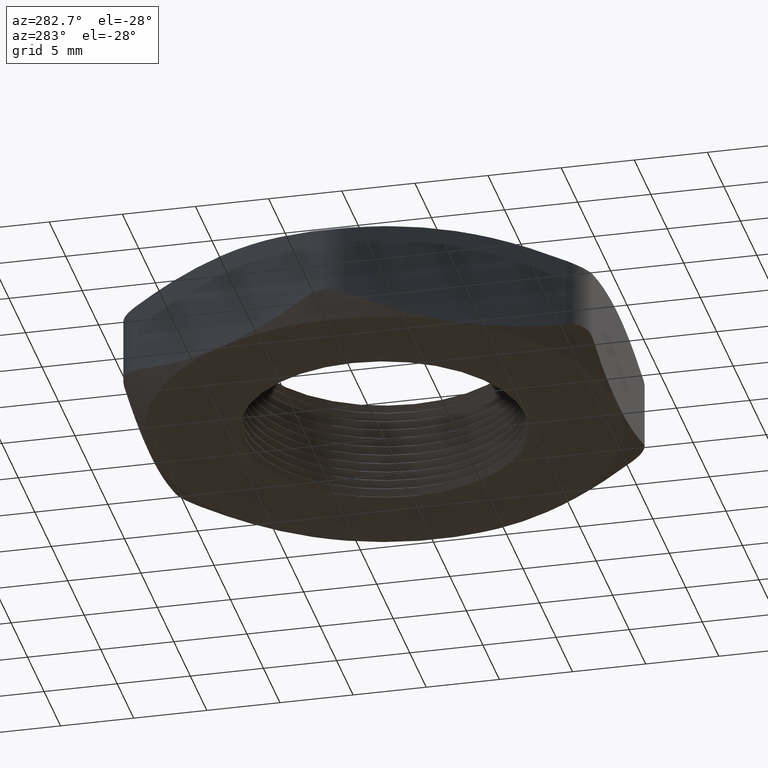
[diagram: clean part render]
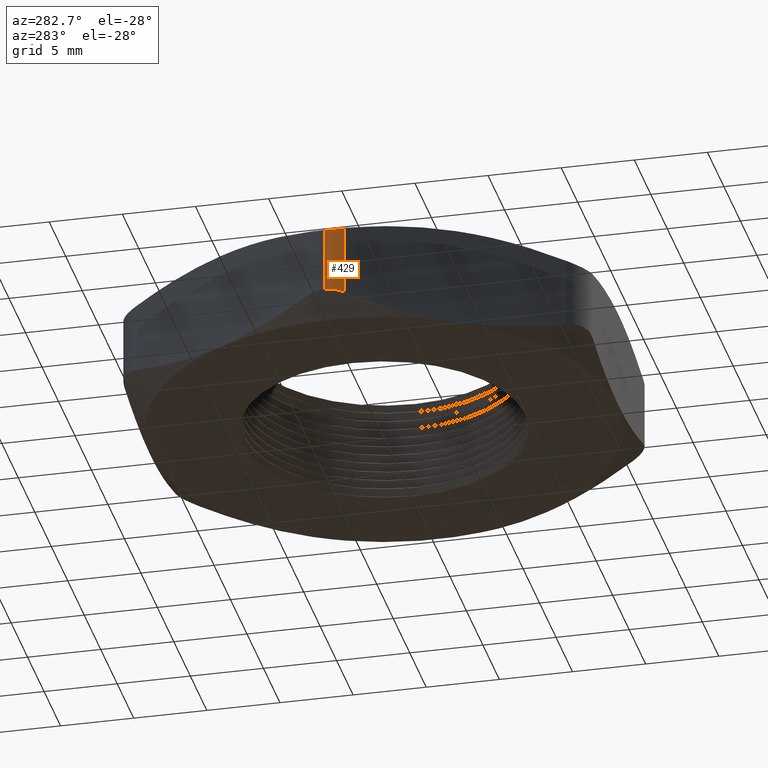
[diagram: same view with one face highlighted and labeled with its STEP entity id]
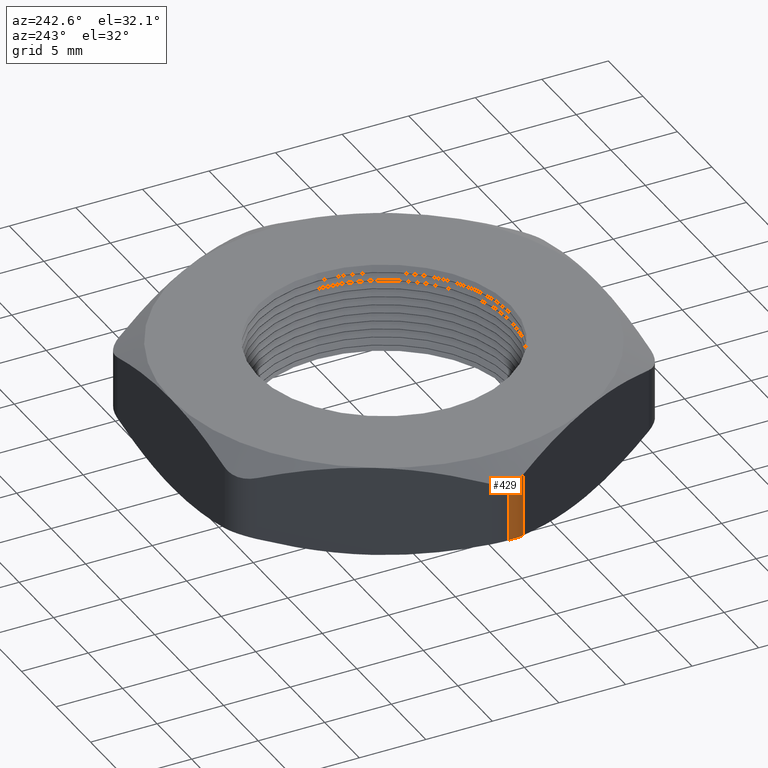
[diagram: same view with one face highlighted and labeled with its STEP entity id]
A machine part, auxiliary view. The second image highlights one B-rep face of the part: STEP entity #429.
A second angle (auxiliary view) of the same face is appended — the face is thin or edge-on in the first view.
In plain terms, the highlighted cylindrical surface (partial cylindrical patch) has radius 2.54 mm, axis along (0, 0, -1).
Its self-contained STEP definition (entity closure, byte-faithful):
#429 = ADVANCED_FACE ( 'NONE', ( #2386 ), #2381, .T. ) ;
#430 = EDGE_LOOP ( 'NONE', ( #431, #435, #756, #703 ) ) ;
#431 = ORIENTED_EDGE ( 'NONE', *, *, #432, .F. ) ;
#432 = EDGE_CURVE ( 'NONE', #433, #434, #2375, .T. ) ;
#433 = VERTEX_POINT ( 'NONE', #2374 ) ;
#434 = VERTEX_POINT ( 'NONE', #2376 ) ;
#435 = ORIENTED_EDGE ( 'NONE', *, *, #436, .T. ) ;
#436 = EDGE_CURVE ( 'NONE', #433, #437, #2448, .T. ) ;
#437 = VERTEX_POINT ( 'NONE', #2438 ) ;
#703 = ORIENTED_EDGE ( 'NONE', *, *, #704, .F. ) ;
#704 = EDGE_CURVE ( 'NONE', #434, #860, #1539, .T. ) ;
#756 = ORIENTED_EDGE ( 'NONE', *, *, #859, .F. ) ;
#859 = EDGE_CURVE ( 'NONE', #860, #437, #2042, .T. ) ;
#860 = VERTEX_POINT ( 'NONE', #2041 ) ;
#1536 = DIRECTION ( 'NONE',  ( 0.0000000000000000000, 0.0000000000000000000, -1.000000000000000000 ) ) ;
#1537 = VECTOR ( 'NONE', #1536, 39.37007874015748100 ) ;
#1538 = CARTESIAN_POINT ( 'NONE',  ( -0.6985938257194471700, -0.04999999999999970400, 0.2700000000000000200 ) ) ;
#1539 = LINE ( 'NONE', #1538, #1537 ) ;
#2035 = CARTESIAN_POINT ( 'NONE',  ( -0.7119912853410032000, -2.089083810617770300E-025, 0.04733769066283132600 ) ) ;
#2036 = CARTESIAN_POINT ( 'NONE',  ( -0.7119912853410034200, -0.008799469864423776300, 0.04733769066283132600 ) ) ;
#2037 = CARTESIAN_POINT ( 'NONE',  ( -0.7108166967446153400, -0.01762088999107100000, 0.04675595919263099400 ) ) ;
#2038 = CARTESIAN_POINT ( 'NONE',  ( -0.7062392442630466300, -0.03455835560612612700, 0.04447479141071376800 ) ) ;
#2039 = CARTESIAN_POINT ( 'NONE',  ( -0.7029114129001637900, -0.04252171963689040100, 0.04281257044098666500 ) ) ;
#2040 = CARTESIAN_POINT ( 'NONE',  ( -0.6985938257194471700, -0.04999999999999966300, 0.04063440198708884900 ) ) ;
#2041 = CARTESIAN_POINT ( 'NONE',  ( -0.6985938257194471700, -0.04999999999999966300, 0.04063440198708884900 ) ) ;
#2042 = B_SPLINE_CURVE_WITH_KNOTS ( 'NONE', 3,
 ( #2040, #2039, #2038, #2037, #2036, #2035 ),
 .UNSPECIFIED., .F., .F.,
 ( 4, 2, 4 ),
 ( 1.105673606836655400E-018, 0.0006695043185744380100, 0.001339008637148874900 ),
 .UNSPECIFIED. ) ;
#2374 = CARTESIAN_POINT ( 'NONE',  ( -0.7119912853410032000, 2.390366996545391600E-016, 0.2226623093371687100 ) ) ;
#2375 = B_SPLINE_CURVE_WITH_KNOTS ( 'NONE', 3,
 ( #2447, #2446, #2445, #2444, #2443, #2442 ),
 .UNSPECIFIED., .F., .F.,
 ( 4, 2, 4 ),
 ( 0.001339008637148883600, 0.002006400144983460800, 0.002673791652818037900 ),
 .UNSPECIFIED. ) ;
#2376 = CARTESIAN_POINT ( 'NONE',  ( -0.6985938257194471700, -0.04999999999999969700, 0.2293655980129112600 ) ) ;
#2377 = DIRECTION ( 'NONE',  ( -1.000000000000000000, 0.0000000000000000000, 0.0000000000000000000 ) ) ;
#2378 = DIRECTION ( 'NONE',  ( 0.0000000000000000000, 0.0000000000000000000, -1.000000000000000000 ) ) ;
#2379 = CARTESIAN_POINT ( 'NONE',  ( -0.6119912853410032200, 2.390366994456230100E-016, 0.2700000000000000200 ) ) ;
#2380 = AXIS2_PLACEMENT_3D ( 'NONE', #2379, #2378, #2377 ) ;
#2381 = CYLINDRICAL_SURFACE ( 'NONE', #2380, 0.09999999999999996400 ) ;
#2386 = FACE_OUTER_BOUND ( 'NONE', #430, .T. ) ;
#2438 = CARTESIAN_POINT ( 'NONE',  ( -0.7119912853410032000, -2.089083810617770300E-025, 0.04733769066283132600 ) ) ;
#2439 = DIRECTION ( 'NONE',  ( 0.0000000000000000000, 0.0000000000000000000, -1.000000000000000000 ) ) ;
#2440 = VECTOR ( 'NONE', #2439, 39.37007874015748100 ) ;
#2441 = CARTESIAN_POINT ( 'NONE',  ( -0.7119912853410032000, 2.390366994456230100E-016, 0.2700000000000000200 ) ) ;
#2442 = CARTESIAN_POINT ( 'NONE',  ( -0.6985938257194471700, -0.04999999999999969700, 0.2293655980129112600 ) ) ;
#2443 = CARTESIAN_POINT ( 'NONE',  ( -0.7028989834715642100, -0.04254324803873454200, 0.2271937000494845800 ) ) ;
#2444 = CARTESIAN_POINT ( 'NONE',  ( -0.7062795191147925900, -0.03442737844402692100, 0.2255051182812896100 ) ) ;
#2445 = CARTESIAN_POINT ( 'NONE',  ( -0.7108047548187622600, -0.01764691657137312100, 0.2232500115585504000 ) ) ;
#2446 = CARTESIAN_POINT ( 'NONE',  ( -0.7119912853410033100, -0.008771700641852692900, 0.2226623093371686800 ) ) ;
#2447 = CARTESIAN_POINT ( 'NONE',  ( -0.7119912853410032000, 2.390366996545391600E-016, 0.2226623093371687100 ) ) ;
#2448 = LINE ( 'NONE', #2441, #2440 ) ;